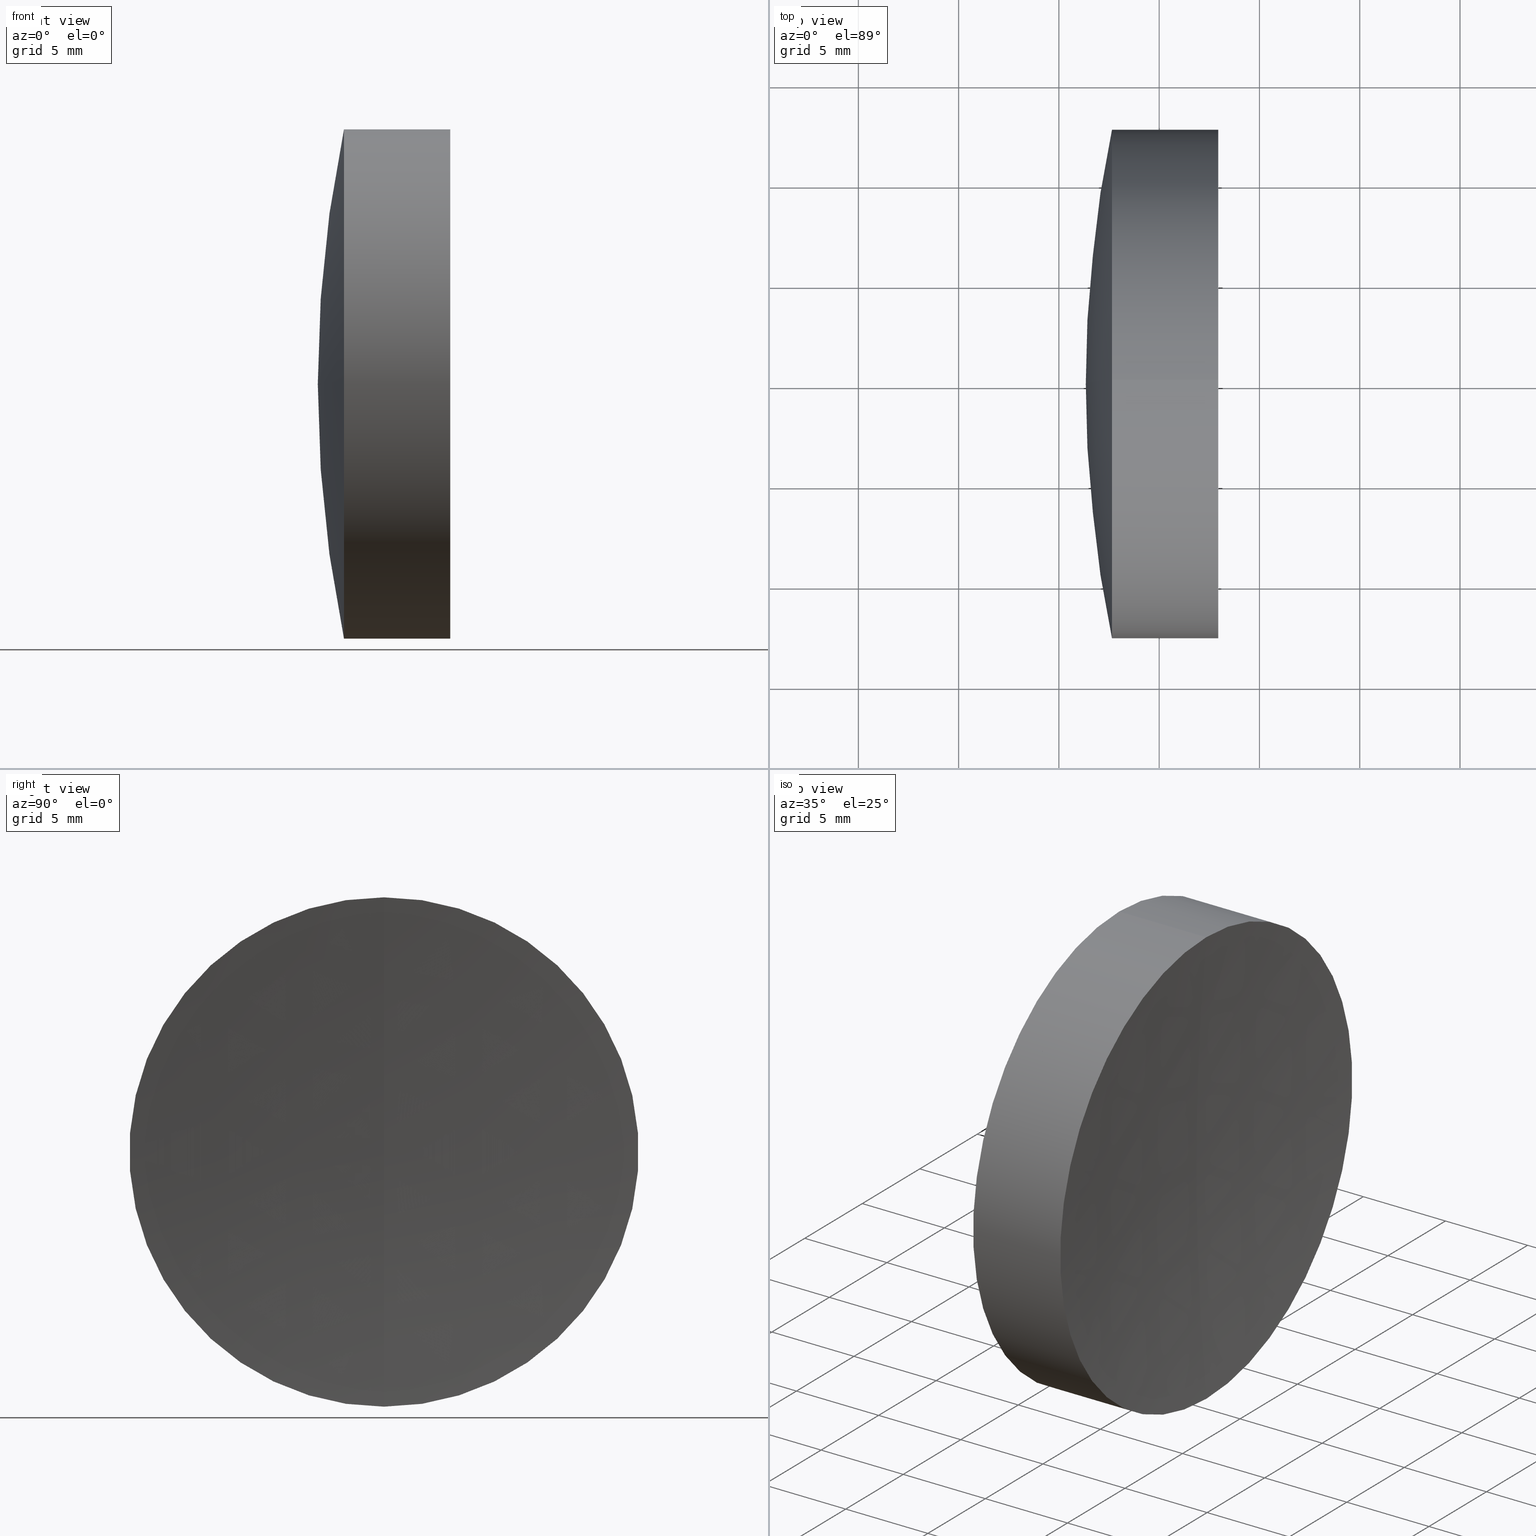
[diagram: canonical four-view strip — front | top / right | iso, engineering-drawing reading convention]
A machine part, canonical four-view strip (front | top / right | iso — engineering-drawing reading convention). The complete STEP part file that produces these views, byte-faithful:
ISO-10303-21;
HEADER;
FILE_DESCRIPTION (( 'STEP AP214' ),
    '1' );
FILE_NAME ('145127.STEP',
    '2019-06-03T08:34:09',
    ( 'user' ),
    ( '΢���й�' ),
    'SwSTEP 2.0',
    'SolidWorks 2016',
    '' );
FILE_SCHEMA (( 'AUTOMOTIVE_DESIGN' ));
ENDSEC;

DATA;
#1 = AXIS2_PLACEMENT_3D ( 'NONE', #175, #86, #236 ) ;
#2 = DIRECTION ( 'NONE',  ( 0.0000000000000000000, 0.0000000000000000000, 1.000000000000000000 ) ) ;
#3 = ORIENTED_EDGE ( 'NONE', *, *, #345, .F. ) ;
#4 = FACE_OUTER_BOUND ( 'NONE', #139, .T. ) ;
#5 = ADVANCED_FACE ( 'NONE', ( #279 ), #141, .T. ) ;
#6 = DIRECTION ( 'NONE',  ( 0.0000000000000000000, 0.0000000000000000000, -1.000000000000000000 ) ) ;
#7 = CARTESIAN_POINT ( 'NONE',  ( 476.3404997922064000, 0.0000000000000000000, 0.0000000000000000000 ) ) ;
#8 = PRESENTATION_LAYER_ASSIGNMENT (  '', '', ( #74 ) ) ;
#9 = SURFACE_STYLE_FILL_AREA ( #343 ) ;
#10 = EDGE_CURVE ( 'NONE', #198, #57, #268, .T. ) ;
#11 = CIRCLE ( 'NONE', #1, 134.0000000000000000 ) ;
#12 = DIRECTION ( 'NONE',  ( 0.0000000000000000000, 0.0000000000000000000, 1.000000000000000000 ) ) ;
#13 = VERTEX_POINT ( 'NONE', #270 ) ;
#14 = SPHERICAL_SURFACE ( 'NONE', #21, 77.40000000000002000 ) ;
#15 = AXIS2_PLACEMENT_3D ( 'NONE', #334, #314, #52 ) ;
#16 = ORIENTED_EDGE ( 'NONE', *, *, #70, .F. ) ;
#17 = DIRECTION ( 'NONE',  ( -1.000000000000000000, -0.0000000000000000000, -0.0000000000000000000 ) ) ;
#18 = ORIENTED_EDGE ( 'NONE', *, *, #81, .F. ) ;
#19 = PRODUCT_DEFINITION_CONTEXT ( 'detailed design', #325, 'design' ) ;
#20 = DIRECTION ( 'NONE',  ( 0.0000000000000000000, 0.0000000000000000000, 1.000000000000000000 ) ) ;
#21 = AXIS2_PLACEMENT_3D ( 'NONE', #281, #246, #2 ) ;
#22 = DIRECTION ( 'NONE',  ( 0.0000000000000000000, 0.0000000000000000000, 1.000000000000000000 ) ) ;
#23 = DIRECTION ( 'NONE',  ( -0.0000000000000000000, 1.000000000000000000, 1.224646799147353200E-016 ) ) ;
#24 = DIRECTION ( 'NONE',  ( 0.0000000000000000000, 0.0000000000000000000, 1.000000000000000000 ) ) ;
#25 = DIRECTION ( 'NONE',  ( 0.0000000000000000000, 1.000000000000000000, 0.0000000000000000000 ) ) ;
#26 = CARTESIAN_POINT ( 'NONE',  ( 262.9404997922063700, 0.0000000000000000000, -2.808750536783838100E-013 ) ) ;
#27 = SURFACE_SIDE_STYLE ('',( #9 ) ) ;
#28 = AXIS2_PLACEMENT_3D ( 'NONE', #177, #214, #269 ) ;
#29 = SHAPE_DEFINITION_REPRESENTATION ( #261, #187 ) ;
#30 =( NAMED_UNIT ( * ) SI_UNIT ( $, .STERADIAN. ) SOLID_ANGLE_UNIT ( ) );
#31 = ADVANCED_FACE ( 'NONE', ( #75 ), #142, .F. ) ;
#32 = AXIS2_PLACEMENT_3D ( 'NONE', #56, #144, #84 ) ;
#33 = VERTEX_POINT ( 'NONE', #185 ) ;
#34 = MANIFOLD_SOLID_BREP ( '��ת3', #229 ) ;
#35 = AXIS2_PLACEMENT_3D ( 'NONE', #160, #265, #338 ) ;
#36 = CYLINDRICAL_SURFACE ( 'NONE', #310, 12.69999999999988600 ) ;
#37 = SURFACE_STYLE_FILL_AREA ( #207 ) ;
#38 = DIRECTION ( 'NONE',  ( 0.0000000000000000000, -1.224646799147353200E-016, 1.000000000000000000 ) ) ;
#39 = VECTOR ( 'NONE', #104, 1000.000000000000000 ) ;
#40 = PRODUCT_DEFINITION_FORMATION_WITH_SPECIFIED_SOURCE ( '�κ�', '', #263, .NOT_KNOWN. ) ;
#41 = DIRECTION ( 'NONE',  ( 0.0000000000000000000, -1.000000000000000000, 0.0000000000000000000 ) ) ;
#42 = EDGE_CURVE ( 'NONE', #184, #91, #48, .T. ) ;
#43 = DIRECTION ( 'NONE',  ( -1.000000000000000000, -0.0000000000000000000, -0.0000000000000000000 ) ) ;
#44 = EDGE_CURVE ( 'NONE', #278, #198, #291, .T. ) ;
#45 = CARTESIAN_POINT ( 'NONE',  ( 262.9404997922063700, 0.0000000000000000000, -2.808750536783838100E-013 ) ) ;
#46 = DIRECTION ( 'NONE',  ( -0.0000000000000000000, 1.000000000000000000, 1.224646799147353200E-016 ) ) ;
#47 = CARTESIAN_POINT ( 'NONE',  ( 398.7404997922063800, 0.0000000000000000000, 1.688039593814494100E-014 ) ) ;
#48 = CIRCLE ( 'NONE', #212, 12.70000000000012700 ) ;
#49 = CIRCLE ( 'NONE', #294, 62.40000000000002000 ) ;
#50 = AXIS2_PLACEMENT_3D ( 'NONE', #26, #23, #122 ) ;
#51 = CIRCLE ( 'NONE', #201, 12.70000000000012700 ) ;
#52 = DIRECTION ( 'NONE',  ( 0.0000000000000000000, 0.0000000000000000000, -1.000000000000000000 ) ) ;
#53 = AXIS2_PLACEMENT_3D ( 'NONE', #332, #302, #123 ) ;
#54 = FILL_AREA_STYLE_COLOUR ( '', #299 ) ;
#55 = VERTEX_POINT ( 'NONE', #153 ) ;
#56 = CARTESIAN_POINT ( 'NONE',  ( -0.5519199926577972300, 0.0000000000000000000, 0.0000000000000000000 ) ) ;
#57 = VERTEX_POINT ( 'NONE', #202 ) ;
#58 = CARTESIAN_POINT ( 'NONE',  ( 340.3404997922064000, 0.0000000000000000000, -2.761356705656835500E-013 ) ) ;
#59 = FACE_OUTER_BOUND ( 'NONE', #237, .T. ) ;
#60 = SURFACE_STYLE_USAGE ( .BOTH. , #69 ) ;
#61 = ADVANCED_FACE ( 'NONE', ( #143 ), #164, .F. ) ;
#62 = PRODUCT_RELATED_PRODUCT_CATEGORY ( 'part', '', ( #263 ) ) ;
#63 = DIRECTION ( 'NONE',  ( -1.000000000000000000, -0.0000000000000000000, -0.0000000000000000000 ) ) ;
#64 = UNCERTAINTY_MEASURE_WITH_UNIT (LENGTH_MEASURE( 1.000000000000000100E-005 ), #82, 'distance_accuracy_value', 'NONE');
#65 = CIRCLE ( 'NONE', #333, 12.69999999999988700 ) ;
#66 = EDGE_LOOP ( 'NONE', ( #197, #238, #311 ) ) ;
#67 = ORIENTED_EDGE ( 'NONE', *, *, #97, .F. ) ;
#68 =( GEOMETRIC_REPRESENTATION_CONTEXT ( 3 ) GLOBAL_UNCERTAINTY_ASSIGNED_CONTEXT ( ( #161 ) ) GLOBAL_UNIT_ASSIGNED_CONTEXT ( ( #132, #146, #313 ) ) REPRESENTATION_CONTEXT ( 'NONE', 'WORKASPACE' ) );
#69 = SURFACE_SIDE_STYLE ('',( #127 ) ) ;
#70 = EDGE_CURVE ( 'NONE', #191, #312, #250, .T. ) ;
#71 = CARTESIAN_POINT ( 'NONE',  ( 262.9404997922063700, 0.0000000000000000000, -2.808750536783838100E-013 ) ) ;
#72 = DIRECTION ( 'NONE',  ( 0.0000000000000000000, 0.0000000000000000000, -1.000000000000000000 ) ) ;
#73 = CIRCLE ( 'NONE', #90, 62.40000000000002000 ) ;
#74 = STYLED_ITEM ( 'NONE', ( #335 ), #179 ) ;
#75 = FACE_OUTER_BOUND ( 'NONE', #66, .T. ) ;
#76 = AXIS2_PLACEMENT_3D ( 'NONE', #178, #287, #211 ) ;
#77 = VECTOR ( 'NONE', #43, 1000.000000000000000 ) ;
#78 = FILL_AREA_STYLE_COLOUR ( '', #280 ) ;
#79 = EDGE_CURVE ( 'NONE', #312, #191, #135, .T. ) ;
#80 = EDGE_LOOP ( 'NONE', ( #189, #264, #321, #222 ) ) ;
#81 = EDGE_CURVE ( 'NONE', #100, #191, #241, .T. ) ;
#82 =( LENGTH_UNIT ( ) NAMED_UNIT ( * ) SI_UNIT ( .MILLI., .METRE. ) );
#83 = FACE_OUTER_BOUND ( 'NONE', #155, .T. ) ;
#84 = DIRECTION ( 'NONE',  ( 0.0000000000000000000, 0.0000000000000000000, 1.000000000000000000 ) ) ;
#85 = SPHERICAL_SURFACE ( 'NONE', #28, 62.40000000000002000 ) ;
#86 = DIRECTION ( 'NONE',  ( 0.0000000000000000000, -1.000000000000000000, -1.224646799147353200E-016 ) ) ;
#87 = ADVANCED_FACE ( 'NONE', ( #266 ), #152, .F. ) ;
#88 = DIRECTION ( 'NONE',  ( -1.000000000000000000, -0.0000000000000000000, -0.0000000000000000000 ) ) ;
#89 = ORIENTED_EDGE ( 'NONE', *, *, #346, .F. ) ;
#90 = AXIS2_PLACEMENT_3D ( 'NONE', #213, #296, #300 ) ;
#91 = VERTEX_POINT ( 'NONE', #193 ) ;
#92 = PRODUCT_DEFINITION ( 'δ֪', '', #40, #19 ) ;
#93 = CARTESIAN_POINT ( 'NONE',  ( 262.9404997922063700, 0.0000000000000000000, -2.808750536783838100E-013 ) ) ;
#94 = DIRECTION ( 'NONE',  ( -1.000000000000000000, -0.0000000000000000000, -0.0000000000000000000 ) ) ;
#95 = DIRECTION ( 'NONE',  ( 0.0000000000000000000, 0.0000000000000000000, 1.000000000000000000 ) ) ;
#96 = DIRECTION ( 'NONE',  ( 0.0000000000000000000, 0.0000000000000000000, 1.000000000000000000 ) ) ;
#97 = EDGE_CURVE ( 'NONE', #278, #57, #108, .T. ) ;
#98 = ORIENTED_EDGE ( 'NONE', *, *, #42, .F. ) ;
#99 = CARTESIAN_POINT ( 'NONE',  ( -0.5519199926577972300, 0.0000000000000000000, 12.70000000000000600 ) ) ;
#100 = VERTEX_POINT ( 'NONE', #58 ) ;
#101 = EDGE_CURVE ( 'NONE', #100, #312, #203, .T. ) ;
#102 = CARTESIAN_POINT ( 'NONE',  ( 262.9404997922063700, 0.0000000000000000000, -2.808750536783838100E-013 ) ) ;
#103 = ORIENTED_EDGE ( 'NONE', *, *, #10, .F. ) ;
#104 = DIRECTION ( 'NONE',  ( -1.000000000000000000, -0.0000000000000000000, -0.0000000000000000000 ) ) ;
#105 = MECHANICAL_DESIGN_GEOMETRIC_PRESENTATION_REPRESENTATION (  '', ( #162 ), #167 ) ;
#106 = FACE_OUTER_BOUND ( 'NONE', #186, .T. ) ;
#107 = CARTESIAN_POINT ( 'NONE',  ( 124.5233095260452400, 0.0000000000000000000, 0.0000000000000000000 ) ) ;
#108 = CIRCLE ( 'NONE', #50, 77.40000000000002000 ) ;
#109 = CARTESIAN_POINT ( 'NONE',  ( 340.3404997922064000, 0.0000000000000000000, -2.761356705656835500E-013 ) ) ;
#110 = ORIENTED_EDGE ( 'NONE', *, *, #337, .T. ) ;
#111 = PRODUCT_CONTEXT ( 'NONE', #323, 'mechanical' ) ;
#112 = EDGE_LOOP ( 'NONE', ( #18, #124, #239 ) ) ;
#113 = AXIS2_PLACEMENT_3D ( 'NONE', #247, #17, #274 ) ;
#114 = VECTOR ( 'NONE', #140, 1000.000000000000000 ) ;
#115 = ADVANCED_FACE ( 'NONE', ( #4 ), #286, .T. ) ;
#116 = LINE ( 'NONE', #231, #39 ) ;
#117 = CARTESIAN_POINT ( 'NONE',  ( 339.2914657323959800, 0.0000000000000000000, 12.69999999999989600 ) ) ;
#118 = SPHERICAL_SURFACE ( 'NONE', #272, 134.0000000000000000 ) ;
#119 = EDGE_CURVE ( 'NONE', #271, #13, #173, .T. ) ;
#120 = CARTESIAN_POINT ( 'NONE',  ( 476.3404997922064000, 0.0000000000000000000, 0.0000000000000000000 ) ) ;
#121 = CARTESIAN_POINT ( 'NONE',  ( 342.9436857372973000, 0.0000000000000000000, 12.70000000000012700 ) ) ;
#122 = DIRECTION ( 'NONE',  ( 0.0000000000000000000, -1.224646799147353200E-016, 1.000000000000000000 ) ) ;
#123 = DIRECTION ( 'NONE',  ( 0.0000000000000000000, 0.0000000000000000000, -1.000000000000000000 ) ) ;
#124 = ORIENTED_EDGE ( 'NONE', *, *, #101, .T. ) ;
#125 = SURFACE_SIDE_STYLE ('',( #37 ) ) ;
#126 = FACE_OUTER_BOUND ( 'NONE', #208, .T. ) ;
#127 = SURFACE_STYLE_FILL_AREA ( #170 ) ;
#128 = EDGE_CURVE ( 'NONE', #184, #312, #344, .T. ) ;
#129 = DIRECTION ( 'NONE',  ( 0.0000000000000000000, 0.0000000000000000000, 1.000000000000000000 ) ) ;
#130 = LINE ( 'NONE', #290, #114 ) ;
#131 = DIRECTION ( 'NONE',  ( -0.0000000000000000000, -1.000000000000000000, -0.0000000000000000000 ) ) ;
#132 =( LENGTH_UNIT ( ) NAMED_UNIT ( * ) SI_UNIT ( .MILLI., .METRE. ) );
#133 = PRESENTATION_LAYER_ASSIGNMENT (  '', '', ( #162 ) ) ;
#134 = CARTESIAN_POINT ( 'NONE',  ( 339.2914657323959800, 0.0000000000000000000, 0.0000000000000000000 ) ) ;
#135 = CIRCLE ( 'NONE', #244, 12.69999999999988400 ) ;
#136 = CARTESIAN_POINT ( 'NONE',  ( 339.2914657323959800, 1.555301434917126000E-015, -12.70000000000017900 ) ) ;
#137 = EDGE_CURVE ( 'NONE', #57, #271, #216, .T. ) ;
#138 = DIRECTION ( 'NONE',  ( -0.0000000000000000000, -1.000000000000000000, -0.0000000000000000000 ) ) ;
#139 = EDGE_LOOP ( 'NONE', ( #315, #324, #245, #16 ) ) ;
#140 = DIRECTION ( 'NONE',  ( -1.000000000000000000, -0.0000000000000000000, -0.0000000000000000000 ) ) ;
#141 = SPHERICAL_SURFACE ( 'NONE', #172, 62.40000000000002000 ) ;
#142 = SPHERICAL_SURFACE ( 'NONE', #251, 77.40000000000002000 ) ;
#143 = FACE_OUTER_BOUND ( 'NONE', #112, .T. ) ;
#144 = DIRECTION ( 'NONE',  ( -1.000000000000000000, -0.0000000000000000000, -0.0000000000000000000 ) ) ;
#145 = ADVANCED_FACE ( 'NONE', ( #194 ), #118, .F. ) ;
#146 =( NAMED_UNIT ( * ) PLANE_ANGLE_UNIT ( ) SI_UNIT ( $, .RADIAN. ) );
#147 = DIRECTION ( 'NONE',  ( -1.000000000000000000, -0.0000000000000000000, -0.0000000000000000000 ) ) ;
#148 = EDGE_LOOP ( 'NONE', ( #183, #306, #110, #200 ) ) ;
#149 = ORIENTED_EDGE ( 'NONE', *, *, #283, .F. ) ;
#150 = ORIENTED_EDGE ( 'NONE', *, *, #346, .T. ) ;
#151 = DIRECTION ( 'NONE',  ( 0.0000000000000000000, 0.0000000000000000000, 1.000000000000000000 ) ) ;
#152 = SPHERICAL_SURFACE ( 'NONE', #15, 134.0000000000000000 ) ;
#153 = CARTESIAN_POINT ( 'NONE',  ( 336.3404997922063400, 0.0000000000000000000, 1.305949792480519800E-014 ) ) ;
#154 = DIRECTION ( 'NONE',  ( 0.0000000000000000000, 1.000000000000000000, 0.0000000000000000000 ) ) ;
#155 = EDGE_LOOP ( 'NONE', ( #320, #275, #103 ) ) ;
#156 = ORIENTED_EDGE ( 'NONE', *, *, #230, .T. ) ;
#157 = CARTESIAN_POINT ( 'NONE',  ( 124.5233095260452400, 0.0000000000000000000, 0.0000000000000000000 ) ) ;
#158 = DIRECTION ( 'NONE',  ( 0.0000000000000000000, 0.0000000000000000000, 1.000000000000000000 ) ) ;
#159 = DIRECTION ( 'NONE',  ( -1.000000000000000000, -0.0000000000000000000, -0.0000000000000000000 ) ) ;
#160 = CARTESIAN_POINT ( 'NONE',  ( -0.5519199926577972300, 0.0000000000000000000, 0.0000000000000000000 ) ) ;
#161 = UNCERTAINTY_MEASURE_WITH_UNIT (LENGTH_MEASURE( 1.000000000000000100E-005 ), #132, 'distance_accuracy_value', 'NONE');
#162 = STYLED_ITEM ( 'NONE', ( #297 ), #187 ) ;
#163 = ADVANCED_FACE ( 'NONE', ( #59 ), #85, .T. ) ;
#164 = SPHERICAL_SURFACE ( 'NONE', #224, 77.40000000000002000 ) ;
#165 =( LENGTH_UNIT ( ) NAMED_UNIT ( * ) SI_UNIT ( .MILLI., .METRE. ) );
#166 = DIRECTION ( 'NONE',  ( 0.0000000000000000000, 0.0000000000000000000, -1.000000000000000000 ) ) ;
#167 =( GEOMETRIC_REPRESENTATION_CONTEXT ( 3 ) GLOBAL_UNCERTAINTY_ASSIGNED_CONTEXT ( ( #225 ) ) GLOBAL_UNIT_ASSIGNED_CONTEXT ( ( #165, #215, #293 ) ) REPRESENTATION_CONTEXT ( 'NONE', 'WORKASPACE' ) );
#168 = CYLINDRICAL_SURFACE ( 'NONE', #218, 12.69999999999988600 ) ;
#169 = CARTESIAN_POINT ( 'NONE',  ( 342.9436857372973000, 0.0000000000000000000, 0.0000000000000000000 ) ) ;
#170 = FILL_AREA_STYLE ('',( #78 ) ) ;
#171 = EDGE_LOOP ( 'NONE', ( #303, #150, #249 ) ) ;
#172 = AXIS2_PLACEMENT_3D ( 'NONE', #47, #131, #6 ) ;
#173 = CIRCLE ( 'NONE', #196, 12.69999999999988200 ) ;
#174 = CARTESIAN_POINT ( 'NONE',  ( 342.9436857372973000, 0.0000000000000000000, 0.0000000000000000000 ) ) ;
#175 = CARTESIAN_POINT ( 'NONE',  ( 476.3404997922064000, 0.0000000000000000000, 0.0000000000000000000 ) ) ;
#176 = DIRECTION ( 'NONE',  ( -1.000000000000000000, -0.0000000000000000000, -0.0000000000000000000 ) ) ;
#177 = CARTESIAN_POINT ( 'NONE',  ( 398.7404997922063800, 0.0000000000000000000, 1.688039593814494100E-014 ) ) ;
#178 = CARTESIAN_POINT ( 'NONE',  ( 0.0000000000000000000, 0.0000000000000000000, 0.0000000000000000000 ) ) ;
#179 = MANIFOLD_SOLID_BREP ( '��ת1', #227 ) ;
#180 = FILL_AREA_STYLE_COLOUR ( '', #342 ) ;
#181 =( GEOMETRIC_REPRESENTATION_CONTEXT ( 3 ) GLOBAL_UNCERTAINTY_ASSIGNED_CONTEXT ( ( #64 ) ) GLOBAL_UNIT_ASSIGNED_CONTEXT ( ( #82, #228, #30 ) ) REPRESENTATION_CONTEXT ( 'NONE', 'WORKASPACE' ) );
#182 = DIRECTION ( 'NONE',  ( -1.000000000000000000, -0.0000000000000000000, -0.0000000000000000000 ) ) ;
#183 = ORIENTED_EDGE ( 'NONE', *, *, #137, .F. ) ;
#184 = VERTEX_POINT ( 'NONE', #121 ) ;
#185 = CARTESIAN_POINT ( 'NONE',  ( 342.3404997922064000, 0.0000000000000000000, -8.205133554287267500E-015 ) ) ;
#186 = EDGE_LOOP ( 'NONE', ( #67, #309, #253 ) ) ;
#187 = ADVANCED_BREP_SHAPE_REPRESENTATION ( '145127', ( #179, #34, #76 ), #181 ) ;
#188 = AXIS2_PLACEMENT_3D ( 'NONE', #120, #219, #95 ) ;
#189 = ORIENTED_EDGE ( 'NONE', *, *, #42, .T. ) ;
#190 =( NAMED_UNIT ( * ) PLANE_ANGLE_UNIT ( ) SI_UNIT ( $, .RADIAN. ) );
#191 = VERTEX_POINT ( 'NONE', #136 ) ;
#192 = ORIENTED_EDGE ( 'NONE', *, *, #273, .F. ) ;
#193 = CARTESIAN_POINT ( 'NONE',  ( 342.9436857372973000, 1.555301434917154200E-015, -12.70000000000012700 ) ) ;
#194 = FACE_OUTER_BOUND ( 'NONE', #319, .T. ) ;
#195 = ADVANCED_FACE ( 'NONE', ( #210 ), #36, .T. ) ;
#196 = AXIS2_PLACEMENT_3D ( 'NONE', #340, #176, #22 ) ;
#197 = ORIENTED_EDGE ( 'NONE', *, *, #101, .F. ) ;
#198 = VERTEX_POINT ( 'NONE', #347 ) ;
#199 = SURFACE_STYLE_USAGE ( .BOTH. , #27 ) ;
#200 = ORIENTED_EDGE ( 'NONE', *, *, #119, .F. ) ;
#201 = AXIS2_PLACEMENT_3D ( 'NONE', #169, #285, #331 ) ;
#202 = CARTESIAN_POINT ( 'NONE',  ( 339.2914657323959800, 1.555301434917124800E-015, -12.69999999999988900 ) ) ;
#203 = CIRCLE ( 'NONE', #53, 77.40000000000002000 ) ;
#204 = AXIS2_PLACEMENT_3D ( 'NONE', #71, #41, #72 ) ;
#205 = DIRECTION ( 'NONE',  ( 0.0000000000000000000, 1.000000000000000000, 0.0000000000000000000 ) ) ;
#206 = CARTESIAN_POINT ( 'NONE',  ( 262.9404997922063700, 0.0000000000000000000, -2.808750536783838100E-013 ) ) ;
#207 = FILL_AREA_STYLE ('',( #180 ) ) ;
#208 = EDGE_LOOP ( 'NONE', ( #235, #304, #89, #257 ) ) ;
#209 = DIRECTION ( 'NONE',  ( 0.0000000000000000000, 0.0000000000000000000, 1.000000000000000000 ) ) ;
#210 = FACE_OUTER_BOUND ( 'NONE', #148, .T. ) ;
#211 = DIRECTION ( 'NONE',  ( 1.000000000000000000, 0.0000000000000000000, 0.0000000000000000000 ) ) ;
#212 = AXIS2_PLACEMENT_3D ( 'NONE', #174, #232, #20 ) ;
#213 = CARTESIAN_POINT ( 'NONE',  ( 398.7404997922063800, 0.0000000000000000000, 1.688039593814494100E-014 ) ) ;
#214 = DIRECTION ( 'NONE',  ( -0.0000000000000000000, -1.000000000000000000, -0.0000000000000000000 ) ) ;
#215 =( NAMED_UNIT ( * ) PLANE_ANGLE_UNIT ( ) SI_UNIT ( $, .RADIAN. ) );
#216 = LINE ( 'NONE', #234, #308 ) ;
#217 = APPLICATION_PROTOCOL_DEFINITION ( 'draft international standard', 'automotive_design', 1998, #323 ) ;
#218 = AXIS2_PLACEMENT_3D ( 'NONE', #157, #147, #242 ) ;
#219 = DIRECTION ( 'NONE',  ( 0.0000000000000000000, 1.000000000000000000, -0.0000000000000000000 ) ) ;
#220 = ADVANCED_FACE ( 'NONE', ( #258 ), #255, .T. ) ;
#221 = ORIENTED_EDGE ( 'NONE', *, *, #283, .T. ) ;
#222 = ORIENTED_EDGE ( 'NONE', *, *, #128, .F. ) ;
#223 = CIRCLE ( 'NONE', #113, 12.69999999999988200 ) ;
#224 = AXIS2_PLACEMENT_3D ( 'NONE', #102, #154, #129 ) ;
#225 = UNCERTAINTY_MEASURE_WITH_UNIT (LENGTH_MEASURE( 1.000000000000000100E-005 ), #165, 'distance_accuracy_value', 'NONE');
#226 =( NAMED_UNIT ( * ) SI_UNIT ( $, .STERADIAN. ) SOLID_ANGLE_UNIT ( ) );
#227 = CLOSED_SHELL ( 'NONE', ( #248, #330, #163, #5, #195, #298 ) ) ;
#228 =( NAMED_UNIT ( * ) PLANE_ANGLE_UNIT ( ) SI_UNIT ( $, .RADIAN. ) );
#229 = CLOSED_SHELL ( 'NONE', ( #145, #220, #31, #61, #115, #87 ) ) ;
#230 = EDGE_CURVE ( 'NONE', #91, #33, #292, .T. ) ;
#231 = CARTESIAN_POINT ( 'NONE',  ( -0.5519199926577972300, 1.555301434917139200E-015, -12.70000000000000600 ) ) ;
#232 = DIRECTION ( 'NONE',  ( -1.000000000000000000, -0.0000000000000000000, -0.0000000000000000000 ) ) ;
#233 = EDGE_LOOP ( 'NONE', ( #149, #3, #156 ) ) ;
#234 = CARTESIAN_POINT ( 'NONE',  ( 124.5233095260452400, 1.555301434917124400E-015, -12.69999999999988600 ) ) ;
#235 = ORIENTED_EDGE ( 'NONE', *, *, #10, .T. ) ;
#236 = DIRECTION ( 'NONE',  ( 0.0000000000000000000, 1.224646799147353500E-016, -1.000000000000000000 ) ) ;
#237 = EDGE_LOOP ( 'NONE', ( #327, #328, #192 ) ) ;
#238 = ORIENTED_EDGE ( 'NONE', *, *, #81, .T. ) ;
#239 = ORIENTED_EDGE ( 'NONE', *, *, #79, .T. ) ;
#240 = PRESENTATION_STYLE_ASSIGNMENT (( #199 ) ) ;
#241 = CIRCLE ( 'NONE', #262, 77.40000000000002000 ) ;
#242 = DIRECTION ( 'NONE',  ( 0.0000000000000000000, 0.0000000000000000000, 1.000000000000000000 ) ) ;
#243 = APPLICATION_PROTOCOL_DEFINITION ( 'draft international standard', 'automotive_design', 1998, #325 ) ;
#244 = AXIS2_PLACEMENT_3D ( 'NONE', #307, #159, #158 ) ;
#245 = ORIENTED_EDGE ( 'NONE', *, *, #128, .T. ) ;
#246 = DIRECTION ( 'NONE',  ( 0.0000000000000000000, 1.000000000000000000, 0.0000000000000000000 ) ) ;
#247 = CARTESIAN_POINT ( 'NONE',  ( 337.6465557388061100, 0.0000000000000000000, 0.0000000000000000000 ) ) ;
#248 = ADVANCED_FACE ( 'NONE', ( #83 ), #14, .T. ) ;
#249 = ORIENTED_EDGE ( 'NONE', *, *, #273, .T. ) ;
#250 = CIRCLE ( 'NONE', #276, 12.69999999999988400 ) ;
#251 = AXIS2_PLACEMENT_3D ( 'NONE', #93, #25, #259 ) ;
#252 = CARTESIAN_POINT ( 'NONE',  ( 339.2914657323959800, 0.0000000000000000000, 0.0000000000000000000 ) ) ;
#253 = ORIENTED_EDGE ( 'NONE', *, *, #326, .F. ) ;
#254 = DIRECTION ( 'NONE',  ( 0.0000000000000000000, 0.0000000000000000000, 1.000000000000000000 ) ) ;
#255 = CYLINDRICAL_SURFACE ( 'NONE', #35, 12.70000000000000600 ) ;
#256 = STYLED_ITEM ( 'NONE', ( #240 ), #34 ) ;
#257 = ORIENTED_EDGE ( 'NONE', *, *, #337, .F. ) ;
#258 = FACE_OUTER_BOUND ( 'NONE', #80, .T. ) ;
#259 = DIRECTION ( 'NONE',  ( 0.0000000000000000000, 0.0000000000000000000, 1.000000000000000000 ) ) ;
#260 = CARTESIAN_POINT ( 'NONE',  ( 339.2914657323959800, 0.0000000000000000000, 0.0000000000000000000 ) ) ;
#261 = PRODUCT_DEFINITION_SHAPE ( 'NONE', 'NONE',  #92 ) ;
#262 = AXIS2_PLACEMENT_3D ( 'NONE', #206, #46, #38 ) ;
#263 = PRODUCT ( '145127', '145127', '', ( #111 ) ) ;
#264 = ORIENTED_EDGE ( 'NONE', *, *, #277, .T. ) ;
#265 = DIRECTION ( 'NONE',  ( -1.000000000000000000, -0.0000000000000000000, -0.0000000000000000000 ) ) ;
#266 = FACE_OUTER_BOUND ( 'NONE', #233, .T. ) ;
#267 = AXIS2_PLACEMENT_3D ( 'NONE', #260, #282, #151 ) ;
#268 = CIRCLE ( 'NONE', #267, 12.69999999999988700 ) ;
#269 = DIRECTION ( 'NONE',  ( 0.0000000000000000000, 0.0000000000000000000, -1.000000000000000000 ) ) ;
#270 = CARTESIAN_POINT ( 'NONE',  ( 337.6465557388061100, -1.555301434917122300E-015, 12.69999999999988600 ) ) ;
#271 = VERTEX_POINT ( 'NONE', #289 ) ;
#272 = AXIS2_PLACEMENT_3D ( 'NONE', #7, #138, #166 ) ;
#273 = EDGE_CURVE ( 'NONE', #271, #55, #49, .T. ) ;
#274 = DIRECTION ( 'NONE',  ( 0.0000000000000000000, 0.0000000000000000000, 1.000000000000000000 ) ) ;
#275 = ORIENTED_EDGE ( 'NONE', *, *, #97, .T. ) ;
#276 = AXIS2_PLACEMENT_3D ( 'NONE', #134, #182, #209 ) ;
#277 = EDGE_CURVE ( 'NONE', #91, #191, #116, .T. ) ;
#278 = VERTEX_POINT ( 'NONE', #109 ) ;
#279 = FACE_OUTER_BOUND ( 'NONE', #171, .T. ) ;
#280 = COLOUR_RGB ( '',1.000000000000000000, 1.000000000000000000, 1.000000000000000000 ) ;
#281 = CARTESIAN_POINT ( 'NONE',  ( 262.9404997922063700, 0.0000000000000000000, -2.808750536783838100E-013 ) ) ;
#282 = DIRECTION ( 'NONE',  ( -1.000000000000000000, -0.0000000000000000000, -0.0000000000000000000 ) ) ;
#283 = EDGE_CURVE ( 'NONE', #184, #33, #11, .T. ) ;
#284 = UNCERTAINTY_MEASURE_WITH_UNIT (LENGTH_MEASURE( 1.000000000000000100E-005 ), #318, 'distance_accuracy_value', 'NONE');
#285 = DIRECTION ( 'NONE',  ( -1.000000000000000000, -0.0000000000000000000, -0.0000000000000000000 ) ) ;
#286 = CYLINDRICAL_SURFACE ( 'NONE', #32, 12.70000000000000600 ) ;
#287 = DIRECTION ( 'NONE',  ( 0.0000000000000000000, 0.0000000000000000000, 1.000000000000000000 ) ) ;
#288 = AXIS2_PLACEMENT_3D ( 'NONE', #45, #205, #24 ) ;
#289 = CARTESIAN_POINT ( 'NONE',  ( 337.6465557388061100, 0.0000000000000000000, -12.69999999999986800 ) ) ;
#290 = CARTESIAN_POINT ( 'NONE',  ( 124.5233095260452400, 0.0000000000000000000, 12.69999999999988600 ) ) ;
#291 = CIRCLE ( 'NONE', #204, 77.40000000000002000 ) ;
#292 = CIRCLE ( 'NONE', #188, 134.0000000000000000 ) ;
#293 =( NAMED_UNIT ( * ) SI_UNIT ( $, .STERADIAN. ) SOLID_ANGLE_UNIT ( ) );
#294 = AXIS2_PLACEMENT_3D ( 'NONE', #295, #341, #12 ) ;
#295 = CARTESIAN_POINT ( 'NONE',  ( 398.7404997922063800, 0.0000000000000000000, 1.688039593814494100E-014 ) ) ;
#296 = DIRECTION ( 'NONE',  ( 0.0000000000000000000, -1.000000000000000000, -1.224646799147353200E-016 ) ) ;
#297 = PRESENTATION_STYLE_ASSIGNMENT (( #317 ) ) ;
#298 = ADVANCED_FACE ( 'NONE', ( #106 ), #322, .T. ) ;
#299 = COLOUR_RGB ( '',1.000000000000000000, 1.000000000000000000, 1.000000000000000000 ) ;
#300 = DIRECTION ( 'NONE',  ( 0.0000000000000000000, 1.224646799147353200E-016, -1.000000000000000000 ) ) ;
#301 = MECHANICAL_DESIGN_GEOMETRIC_PRESENTATION_REPRESENTATION (  '', ( #256 ), #68 ) ;
#302 = DIRECTION ( 'NONE',  ( 0.0000000000000000000, -1.000000000000000000, 0.0000000000000000000 ) ) ;
#303 = ORIENTED_EDGE ( 'NONE', *, *, #329, .F. ) ;
#304 = ORIENTED_EDGE ( 'NONE', *, *, #137, .T. ) ;
#305 = PRESENTATION_LAYER_ASSIGNMENT (  '', '', ( #256 ) ) ;
#306 = ORIENTED_EDGE ( 'NONE', *, *, #326, .T. ) ;
#307 = CARTESIAN_POINT ( 'NONE',  ( 339.2914657323959800, 0.0000000000000000000, 0.0000000000000000000 ) ) ;
#308 = VECTOR ( 'NONE', #63, 1000.000000000000000 ) ;
#309 = ORIENTED_EDGE ( 'NONE', *, *, #44, .T. ) ;
#310 = AXIS2_PLACEMENT_3D ( 'NONE', #107, #88, #254 ) ;
#311 = ORIENTED_EDGE ( 'NONE', *, *, #70, .T. ) ;
#312 = VERTEX_POINT ( 'NONE', #117 ) ;
#313 =( NAMED_UNIT ( * ) SI_UNIT ( $, .STERADIAN. ) SOLID_ANGLE_UNIT ( ) );
#314 = DIRECTION ( 'NONE',  ( -0.0000000000000000000, -1.000000000000000000, -0.0000000000000000000 ) ) ;
#315 = ORIENTED_EDGE ( 'NONE', *, *, #277, .F. ) ;
#316 =( GEOMETRIC_REPRESENTATION_CONTEXT ( 3 ) GLOBAL_UNCERTAINTY_ASSIGNED_CONTEXT ( ( #284 ) ) GLOBAL_UNIT_ASSIGNED_CONTEXT ( ( #318, #190, #226 ) ) REPRESENTATION_CONTEXT ( 'NONE', 'WORKASPACE' ) );
#317 = SURFACE_STYLE_USAGE ( .BOTH. , #125 ) ;
#318 =( LENGTH_UNIT ( ) NAMED_UNIT ( * ) SI_UNIT ( .MILLI., .METRE. ) );
#319 = EDGE_LOOP ( 'NONE', ( #98, #221, #339 ) ) ;
#320 = ORIENTED_EDGE ( 'NONE', *, *, #44, .F. ) ;
#321 = ORIENTED_EDGE ( 'NONE', *, *, #79, .F. ) ;
#322 = SPHERICAL_SURFACE ( 'NONE', #288, 77.40000000000002000 ) ;
#323 = APPLICATION_CONTEXT ( 'automotive_design' ) ;
#324 = ORIENTED_EDGE ( 'NONE', *, *, #345, .T. ) ;
#325 = APPLICATION_CONTEXT ( 'automotive_design' ) ;
#326 = EDGE_CURVE ( 'NONE', #57, #198, #65, .T. ) ;
#327 = ORIENTED_EDGE ( 'NONE', *, *, #119, .T. ) ;
#328 = ORIENTED_EDGE ( 'NONE', *, *, #329, .T. ) ;
#329 = EDGE_CURVE ( 'NONE', #13, #55, #73, .T. ) ;
#330 = ADVANCED_FACE ( 'NONE', ( #126 ), #168, .T. ) ;
#331 = DIRECTION ( 'NONE',  ( 0.0000000000000000000, 0.0000000000000000000, 1.000000000000000000 ) ) ;
#332 = CARTESIAN_POINT ( 'NONE',  ( 262.9404997922063700, 0.0000000000000000000, -2.808750536783838100E-013 ) ) ;
#333 = AXIS2_PLACEMENT_3D ( 'NONE', #252, #94, #96 ) ;
#334 = CARTESIAN_POINT ( 'NONE',  ( 476.3404997922064000, 0.0000000000000000000, 0.0000000000000000000 ) ) ;
#335 = PRESENTATION_STYLE_ASSIGNMENT (( #60 ) ) ;
#336 = MECHANICAL_DESIGN_GEOMETRIC_PRESENTATION_REPRESENTATION (  '', ( #74 ), #316 ) ;
#337 = EDGE_CURVE ( 'NONE', #198, #13, #130, .T. ) ;
#338 = DIRECTION ( 'NONE',  ( 0.0000000000000000000, 0.0000000000000000000, 1.000000000000000000 ) ) ;
#339 = ORIENTED_EDGE ( 'NONE', *, *, #230, .F. ) ;
#340 = CARTESIAN_POINT ( 'NONE',  ( 337.6465557388061100, 0.0000000000000000000, 0.0000000000000000000 ) ) ;
#341 = DIRECTION ( 'NONE',  ( 0.0000000000000000000, 1.000000000000000000, -0.0000000000000000000 ) ) ;
#342 = COLOUR_RGB ( '',1.000000000000000000, 1.000000000000000000, 1.000000000000000000 ) ;
#343 = FILL_AREA_STYLE ('',( #54 ) ) ;
#344 = LINE ( 'NONE', #99, #77 ) ;
#345 = EDGE_CURVE ( 'NONE', #91, #184, #51, .T. ) ;
#346 = EDGE_CURVE ( 'NONE', #13, #271, #223, .T. ) ;
#347 = CARTESIAN_POINT ( 'NONE',  ( 339.2914657323959800, 0.0000000000000000000, 12.69999999999988700 ) ) ;
ENDSEC;
END-ISO-10303-21;
